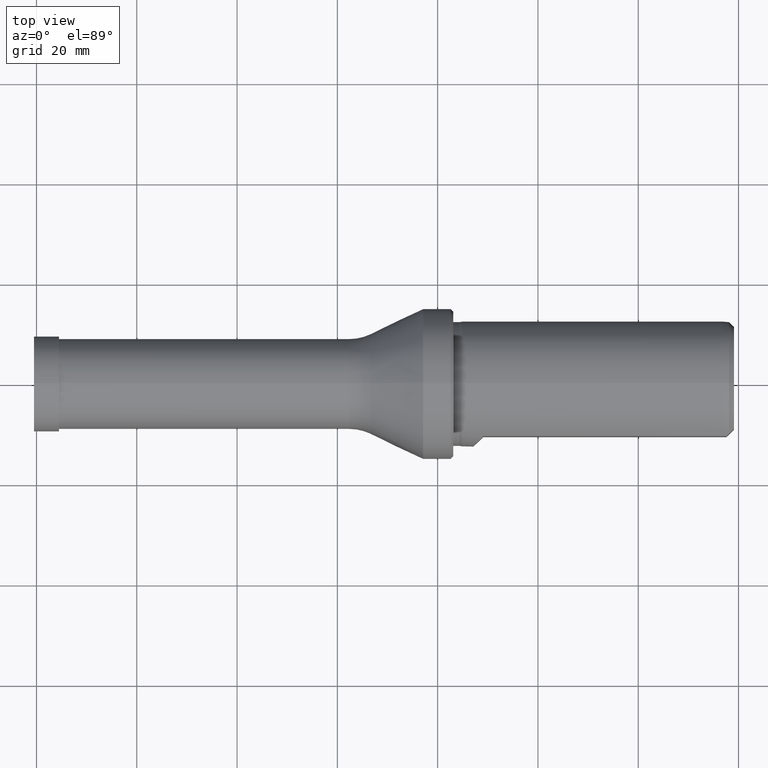
[diagram: clean part render]
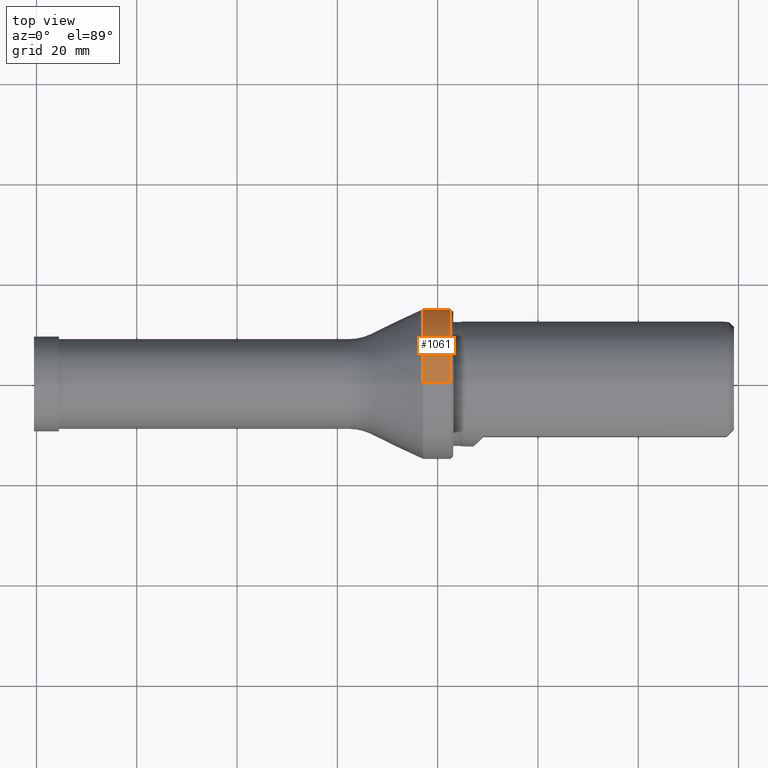
[diagram: same view with one face highlighted and labeled with its STEP entity id]
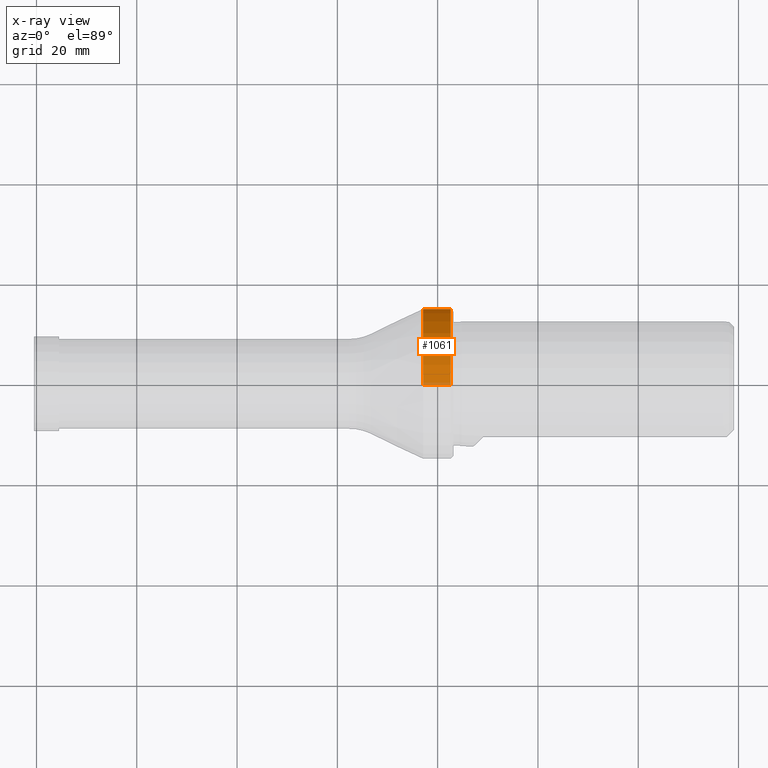
[diagram: x-ray of the same camera — body ghosted, the highlighted face saturated]
A machine part, top view. The second image highlights one B-rep face of the part: STEP entity #1061.
The next image is the same camera in x-ray: the body ghosted, the highlighted face saturated — about 3% of this face is hidden behind the body in this view.
In plain terms, the highlighted cylindrical surface (partial cylindrical patch) has radius 15 mm, axis along (-1, -0, -0).
Its self-contained STEP definition (entity closure, byte-faithful):
#58 = CARTESIAN_POINT ( 'NONE',  ( 77.10000000000000900, 0.0000000000000000000, 0.0000000000000000000 ) ) ;
#64 = CARTESIAN_POINT ( 'NONE',  ( 0.0000000000000000000, 0.0000000000000000000, 0.0000000000000000000 ) ) ;
#74 = CIRCLE ( 'NONE', #376, 15.00000000000000000 ) ;
#87 = VERTEX_POINT ( 'NONE', #309 ) ;
#108 = CARTESIAN_POINT ( 'NONE',  ( 0.0000000000000000000, 0.0000000000000000000, 15.00000000000000000 ) ) ;
#176 = EDGE_CURVE ( 'NONE', #267, #689, #628, .T. ) ;
#210 = VERTEX_POINT ( 'NONE', #294 ) ;
#237 = EDGE_CURVE ( 'NONE', #267, #210, #74, .T. ) ;
#267 = VERTEX_POINT ( 'NONE', #1105 ) ;
#294 = CARTESIAN_POINT ( 'NONE',  ( 82.60000000000003700, 1.836970198721029600E-015, -15.00000000000000000 ) ) ;
#309 = CARTESIAN_POINT ( 'NONE',  ( 77.10000000000000900, 0.0000000000000000000, -14.99999999999999800 ) ) ;
#338 = VECTOR ( 'NONE', #783, 1000.000000000000000 ) ;
#376 = AXIS2_PLACEMENT_3D ( 'NONE', #795, #673, #969 ) ;
#482 = ORIENTED_EDGE ( 'NONE', *, *, #237, .T. ) ;
#543 = ORIENTED_EDGE ( 'NONE', *, *, #176, .F. ) ;
#570 = DIRECTION ( 'NONE',  ( 0.0000000000000000000, 0.0000000000000000000, 1.000000000000000000 ) ) ;
#581 = EDGE_CURVE ( 'NONE', #210, #87, #684, .T. ) ;
#628 = LINE ( 'NONE', #108, #338 ) ;
#658 = VECTOR ( 'NONE', #1102, 1000.000000000000000 ) ;
#662 = AXIS2_PLACEMENT_3D ( 'NONE', #64, #1220, #780 ) ;
#673 = DIRECTION ( 'NONE',  ( -1.000000000000000000, -0.0000000000000000000, -0.0000000000000000000 ) ) ;
#684 = LINE ( 'NONE', #696, #658 ) ;
#689 = VERTEX_POINT ( 'NONE', #801 ) ;
#696 = CARTESIAN_POINT ( 'NONE',  ( 0.0000000000000000000, 1.836970198721029600E-015, -15.00000000000000000 ) ) ;
#742 = DIRECTION ( 'NONE',  ( -1.000000000000000000, -0.0000000000000000000, -0.0000000000000000000 ) ) ;
#743 = CIRCLE ( 'NONE', #990, 14.99999999999999800 ) ;
#772 = CYLINDRICAL_SURFACE ( 'NONE', #662, 15.00000000000000000 ) ;
#780 = DIRECTION ( 'NONE',  ( 0.0000000000000000000, 0.0000000000000000000, 1.000000000000000000 ) ) ;
#783 = DIRECTION ( 'NONE',  ( -1.000000000000000000, -0.0000000000000000000, -0.0000000000000000000 ) ) ;
#791 = EDGE_LOOP ( 'NONE', ( #482, #1059, #875, #543 ) ) ;
#795 = CARTESIAN_POINT ( 'NONE',  ( 82.60000000000003700, 0.0000000000000000000, 0.0000000000000000000 ) ) ;
#801 = CARTESIAN_POINT ( 'NONE',  ( 77.10000000000000900, 1.836970198721029600E-015, 14.99999999999999800 ) ) ;
#875 = ORIENTED_EDGE ( 'NONE', *, *, #1069, .F. ) ;
#969 = DIRECTION ( 'NONE',  ( 0.0000000000000000000, 0.0000000000000000000, 1.000000000000000000 ) ) ;
#990 = AXIS2_PLACEMENT_3D ( 'NONE', #58, #742, #570 ) ;
#1059 = ORIENTED_EDGE ( 'NONE', *, *, #581, .T. ) ;
#1061 = ADVANCED_FACE ( 'NONE', ( #1085 ), #772, .T. ) ;
#1069 = EDGE_CURVE ( 'NONE', #689, #87, #743, .T. ) ;
#1085 = FACE_OUTER_BOUND ( 'NONE', #791, .T. ) ;
#1102 = DIRECTION ( 'NONE',  ( -1.000000000000000000, -0.0000000000000000000, -0.0000000000000000000 ) ) ;
#1105 = CARTESIAN_POINT ( 'NONE',  ( 82.60000000000003700, 0.0000000000000000000, 15.00000000000000000 ) ) ;
#1220 = DIRECTION ( 'NONE',  ( -1.000000000000000000, -0.0000000000000000000, -0.0000000000000000000 ) ) ;